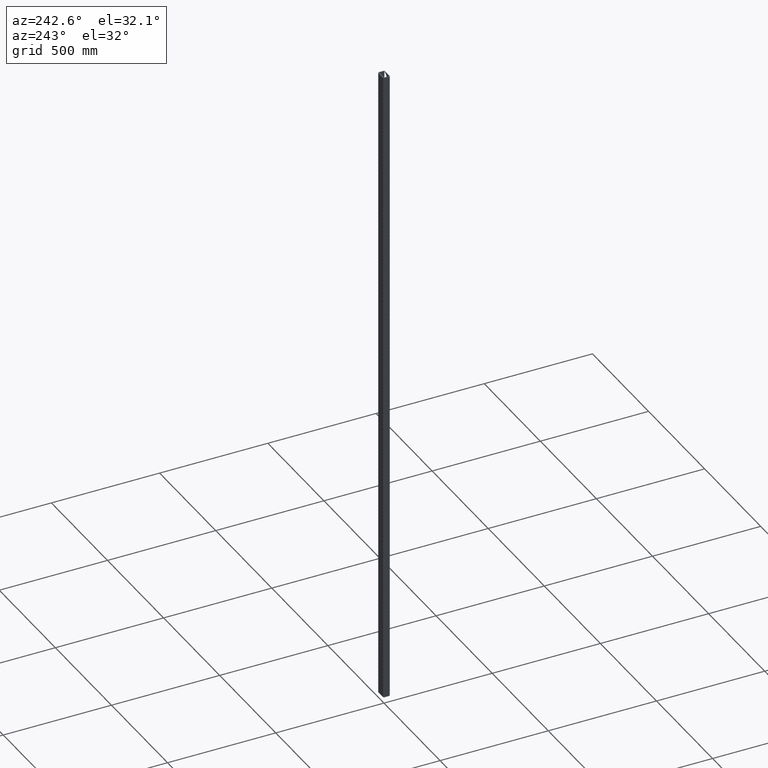
[diagram: clean part render]
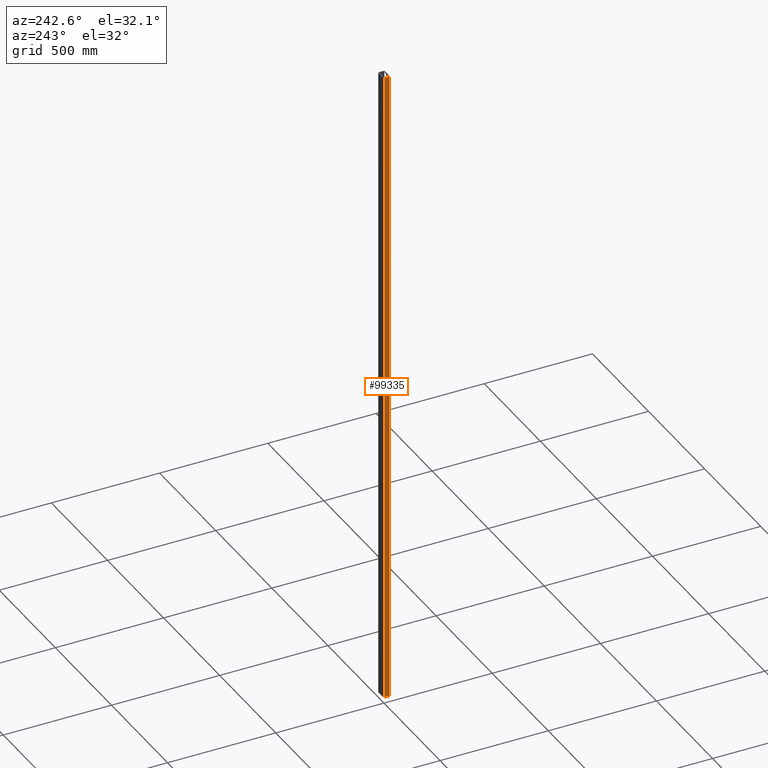
[diagram: same view with one face highlighted and labeled with its STEP entity id]
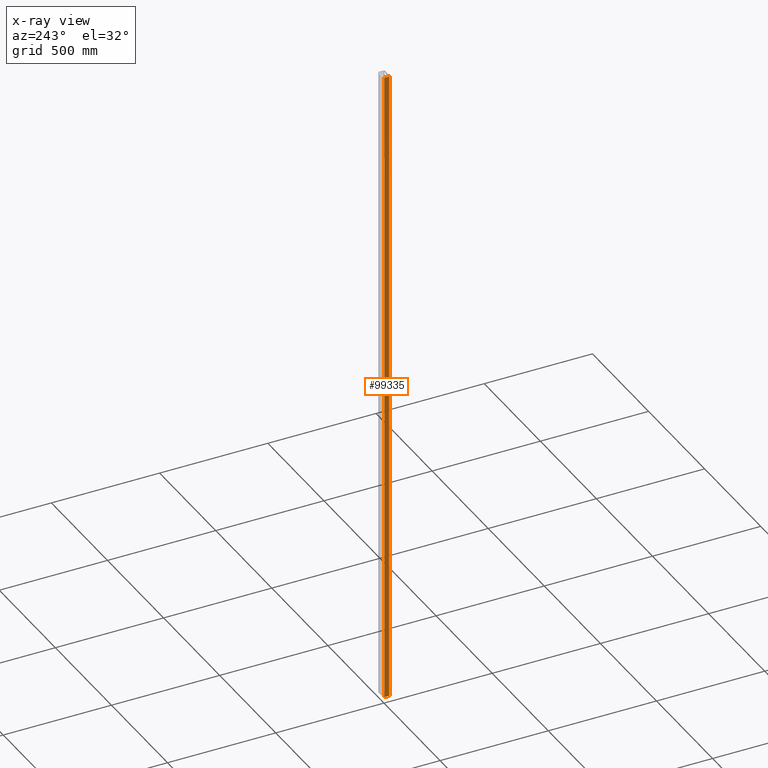
[diagram: x-ray of the same camera — body ghosted, the highlighted face saturated]
A machine part, auxiliary view. The second image highlights one B-rep face of the part: STEP entity #99335.
The next image is the same camera in x-ray: the body ghosted, the highlighted face saturated — about 0% of this face is hidden behind the body in this view.
In plain terms, the highlighted planar face has unit normal (-1, -0, 0).
Its self-contained STEP definition (entity closure, byte-faithful):
#2012 = VECTOR ( 'NONE', #116628, 1000.000000000000000 ) ;
#2221 = AXIS2_PLACEMENT_3D ( 'NONE', #58180, #57750, #116392 ) ;
#2333 = EDGE_CURVE ( 'NONE', #64419, #11533, #68955, .T. ) ;
#5092 = EDGE_CURVE ( 'NONE', #11533, #71098, #22850, .T. ) ;
#8883 = ORIENTED_EDGE ( 'NONE', *, *, #5092, .T. ) ;
#11533 = VERTEX_POINT ( 'NONE', #87558 ) ;
#12165 = VECTOR ( 'NONE', #109031, 1000.000000000000000 ) ;
#17351 = CARTESIAN_POINT ( 'NONE',  ( -25.00000000000000000, 11.25000000000000533, -3000.000000000000000 ) ) ;
#22850 = LINE ( 'NONE', #80233, #50173 ) ;
#32245 = DIRECTION ( 'NONE',  ( 0.000000000000000000, 0.000000000000000000, 1.000000000000000000 ) ) ;
#40428 = EDGE_LOOP ( 'NONE', ( #84107, #97483, #64148, #8883 ) ) ;
#45822 = DIRECTION ( 'NONE',  ( 2.312964634635742957E-16, -1.000000000000000000, 0.000000000000000000 ) ) ;
#50173 = VECTOR ( 'NONE', #32245, 1000.000000000000000 ) ;
#57750 = DIRECTION ( 'NONE',  ( -1.000000000000000000, -2.312964634635742464E-16, 0.000000000000000000 ) ) ;
#58180 = CARTESIAN_POINT ( 'NONE',  ( -25.00000000000000000, 15.00000000000000533, -3000.000000000000000 ) ) ;
#64148 = ORIENTED_EDGE ( 'NONE', *, *, #2333, .T. ) ;
#64419 = VERTEX_POINT ( 'NONE', #17351 ) ;
#66962 = CARTESIAN_POINT ( 'NONE',  ( -25.00000000000000000, 11.25000000000000533, -3000.000000000000000 ) ) ;
#68199 = EDGE_CURVE ( 'NONE', #112073, #71098, #114070, .T. ) ;
#68955 = LINE ( 'NONE', #105236, #78074 ) ;
#69252 = PLANE ( 'NONE',  #2221 ) ;
#71098 = VERTEX_POINT ( 'NONE', #99992 ) ;
#73442 = LINE ( 'NONE', #66962, #2012 ) ;
#77791 = CARTESIAN_POINT ( 'NONE',  ( -25.00000000000000000, 11.25000000000000533, 0.000000000000000000 ) ) ;
#78074 = VECTOR ( 'NONE', #45822, 1000.000000000000000 ) ;
#80233 = CARTESIAN_POINT ( 'NONE',  ( -24.99999999999999289, -11.24999999999999822, -3000.000000000000000 ) ) ;
#84107 = ORIENTED_EDGE ( 'NONE', *, *, #68199, .F. ) ;
#87558 = CARTESIAN_POINT ( 'NONE',  ( -24.99999999999999289, -11.24999999999999822, -3000.000000000000000 ) ) ;
#90266 = CARTESIAN_POINT ( 'NONE',  ( -25.00000000000000000, 15.00000000000000533, 0.000000000000000000 ) ) ;
#97483 = ORIENTED_EDGE ( 'NONE', *, *, #101932, .T. ) ;
#99335 = ADVANCED_FACE ( 'NONE', ( #125332 ), #69252, .T. ) ;
#99992 = CARTESIAN_POINT ( 'NONE',  ( -24.99999999999999289, -11.24999999999999822, 0.000000000000000000 ) ) ;
#101932 = EDGE_CURVE ( 'NONE', #112073, #64419, #73442, .T. ) ;
#105236 = CARTESIAN_POINT ( 'NONE',  ( -25.00000000000000000, 15.00000000000000533, -3000.000000000000000 ) ) ;
#109031 = DIRECTION ( 'NONE',  ( 2.312964634635742957E-16, -1.000000000000000000, 0.000000000000000000 ) ) ;
#112073 = VERTEX_POINT ( 'NONE', #77791 ) ;
#114070 = LINE ( 'NONE', #90266, #12165 ) ;
#116392 = DIRECTION ( 'NONE',  ( 2.312964634635742464E-16, -1.000000000000000000, 0.000000000000000000 ) ) ;
#116628 = DIRECTION ( 'NONE',  ( -0.000000000000000000, -0.000000000000000000, -1.000000000000000000 ) ) ;
#125332 = FACE_OUTER_BOUND ( 'NONE', #40428, .T. ) ;